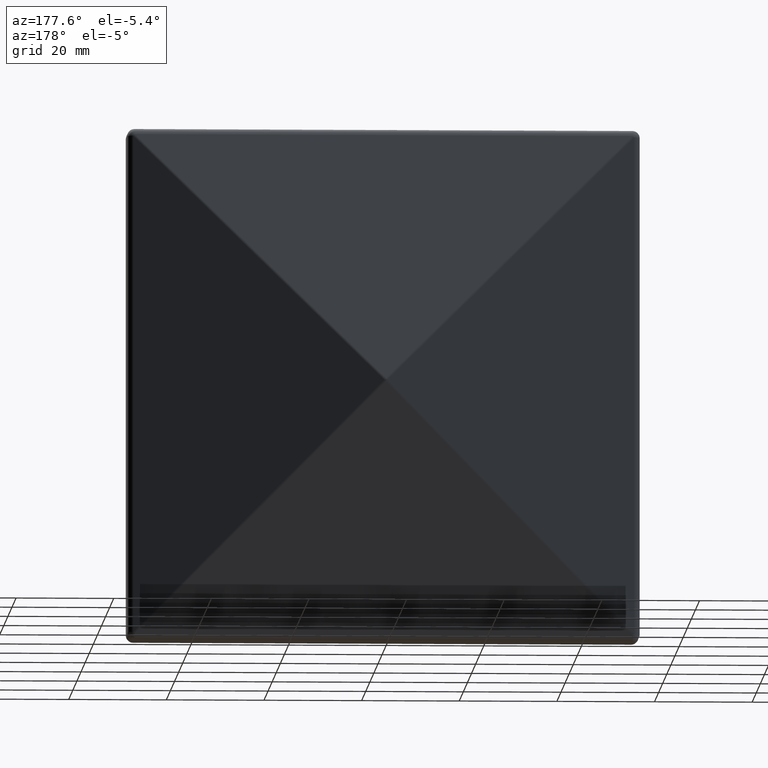
[diagram: clean part render]
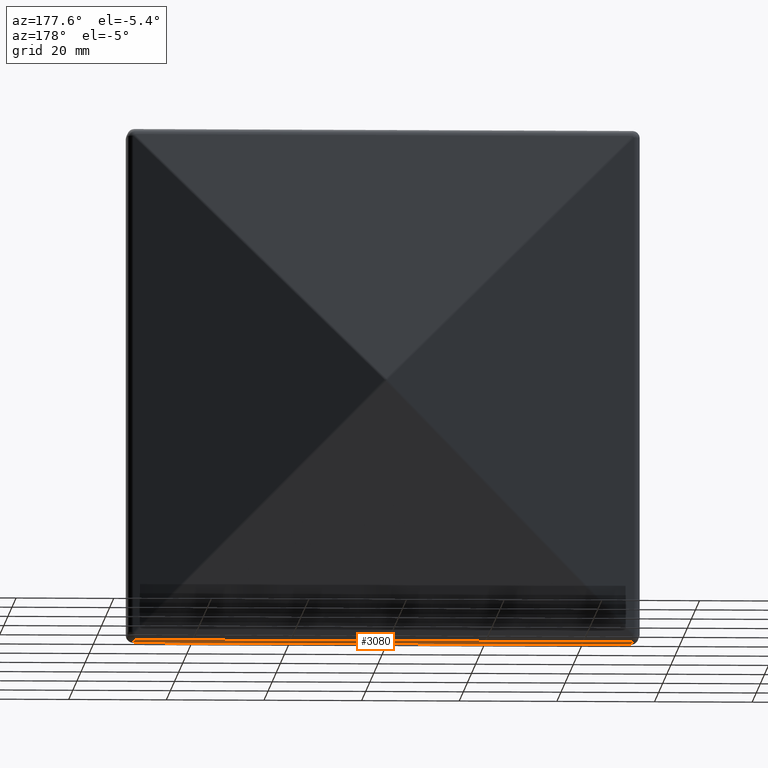
[diagram: same view with one face highlighted and labeled with its STEP entity id]
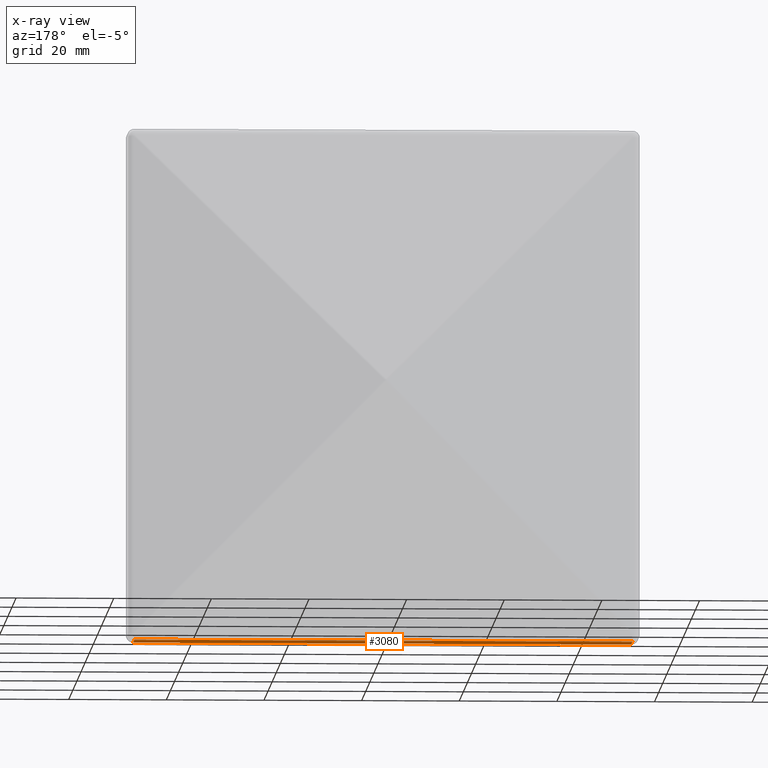
[diagram: x-ray of the same camera — body ghosted, the highlighted face saturated]
A machine part, auxiliary view. The second image highlights one B-rep face of the part: STEP entity #3080.
The next image is the same camera in x-ray: the body ghosted, the highlighted face saturated — about 0% of this face is hidden behind the body in this view.
In plain terms, the highlighted planar face has unit normal (0, 0, 1).
Its self-contained STEP definition (entity closure, byte-faithful):
#50 = LINE ( 'NONE', #3341, #4533 ) ;
#185 = CARTESIAN_POINT ( 'NONE',  ( -50.99999999999997200, 6.500000000000000000, -52.50000000000001400 ) ) ;
#296 = EDGE_LOOP ( 'NONE', ( #5942, #10129, #2510, #1880 ) ) ;
#1265 = CARTESIAN_POINT ( 'NONE',  ( 51.00000000000000700, 0.0000000000000000000, -52.49999999999999300 ) ) ;
#1709 = VERTEX_POINT ( 'NONE', #185 ) ;
#1761 = EDGE_CURVE ( 'NONE', #5494, #1709, #6707, .T. ) ;
#1880 = ORIENTED_EDGE ( 'NONE', *, *, #1761, .T. ) ;
#2510 = ORIENTED_EDGE ( 'NONE', *, *, #4387, .T. ) ;
#2928 = VERTEX_POINT ( 'NONE', #4180 ) ;
#3080 = ADVANCED_FACE ( 'NONE', ( #10920 ), #9816, .F. ) ;
#3303 = EDGE_CURVE ( 'NONE', #2928, #1709, #50, .T. ) ;
#3341 = CARTESIAN_POINT ( 'NONE',  ( 52.50000000000001400, 6.500000000000000000, -52.50000000000003600 ) ) ;
#3387 = CARTESIAN_POINT ( 'NONE',  ( 51.00000000000000700, 19.00000000000000000, -52.49999999999999300 ) ) ;
#4124 = LINE ( 'NONE', #10868, #6294 ) ;
#4180 = CARTESIAN_POINT ( 'NONE',  ( 51.00000000000000700, 6.500000000000000000, -52.50000000000003600 ) ) ;
#4387 = EDGE_CURVE ( 'NONE', #8915, #5494, #4124, .T. ) ;
#4429 = VECTOR ( 'NONE', #5065, 1000.000000000000000 ) ;
#4533 = VECTOR ( 'NONE', #10163, 1000.000000000000000 ) ;
#4598 = CARTESIAN_POINT ( 'NONE',  ( -52.50000000000000700, 19.00000000000000000, -52.49999999999999300 ) ) ;
#4863 = AXIS2_PLACEMENT_3D ( 'NONE', #4598, #10700, #7326 ) ;
#5065 = DIRECTION ( 'NONE',  ( -0.0000000000000000000, 1.000000000000000000, -0.0000000000000000000 ) ) ;
#5191 = EDGE_CURVE ( 'NONE', #2928, #8915, #8985, .T. ) ;
#5494 = VERTEX_POINT ( 'NONE', #11239 ) ;
#5906 = DIRECTION ( 'NONE',  ( -1.000000000000000000, -0.0000000000000000000, -0.0000000000000000000 ) ) ;
#5942 = ORIENTED_EDGE ( 'NONE', *, *, #3303, .F. ) ;
#6294 = VECTOR ( 'NONE', #5906, 1000.000000000000000 ) ;
#6707 = LINE ( 'NONE', #6733, #4429 ) ;
#6733 = CARTESIAN_POINT ( 'NONE',  ( -51.00000000000000700, 19.00000000000000000, -52.49999999999999300 ) ) ;
#7326 = DIRECTION ( 'NONE',  ( 1.000000000000000000, 0.0000000000000000000, -0.0000000000000000000 ) ) ;
#8915 = VERTEX_POINT ( 'NONE', #1265 ) ;
#8985 = LINE ( 'NONE', #3387, #11156 ) ;
#9816 = PLANE ( 'NONE',  #4863 ) ;
#10129 = ORIENTED_EDGE ( 'NONE', *, *, #5191, .T. ) ;
#10163 = DIRECTION ( 'NONE',  ( -1.000000000000000000, -0.0000000000000000000, 2.220446049250313100E-016 ) ) ;
#10700 = DIRECTION ( 'NONE',  ( 0.0000000000000000000, 0.0000000000000000000, 1.000000000000000000 ) ) ;
#10868 = CARTESIAN_POINT ( 'NONE',  ( -52.50000000000000700, 0.0000000000000000000, -52.49999999999999300 ) ) ;
#10920 = FACE_OUTER_BOUND ( 'NONE', #296, .T. ) ;
#11156 = VECTOR ( 'NONE', #11228, 1000.000000000000000 ) ;
#11228 = DIRECTION ( 'NONE',  ( 0.0000000000000000000, -1.000000000000000000, 0.0000000000000000000 ) ) ;
#11239 = CARTESIAN_POINT ( 'NONE',  ( -51.00000000000000700, 0.0000000000000000000, -52.49999999999999300 ) ) ;